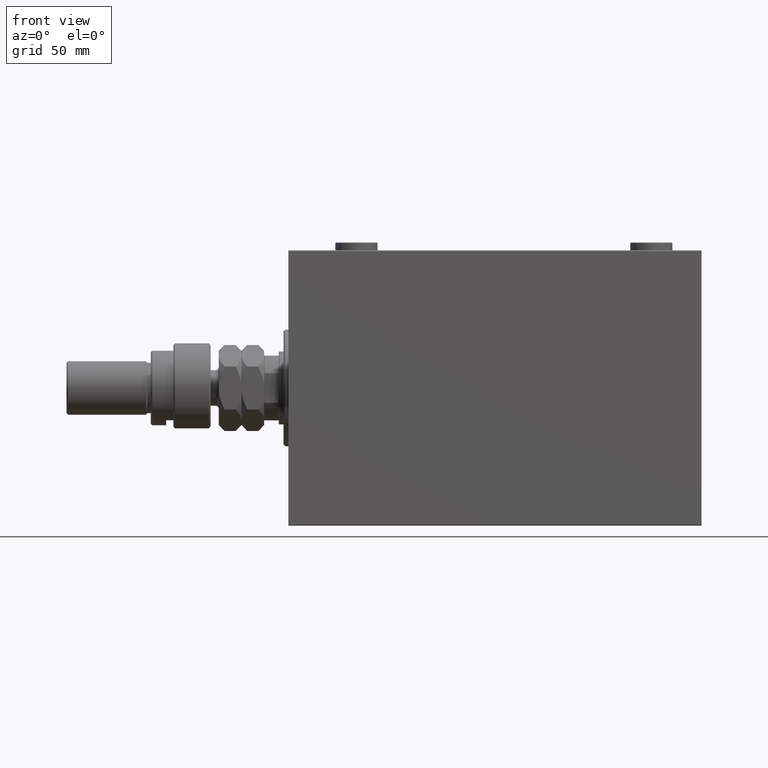
[diagram: clean part render]
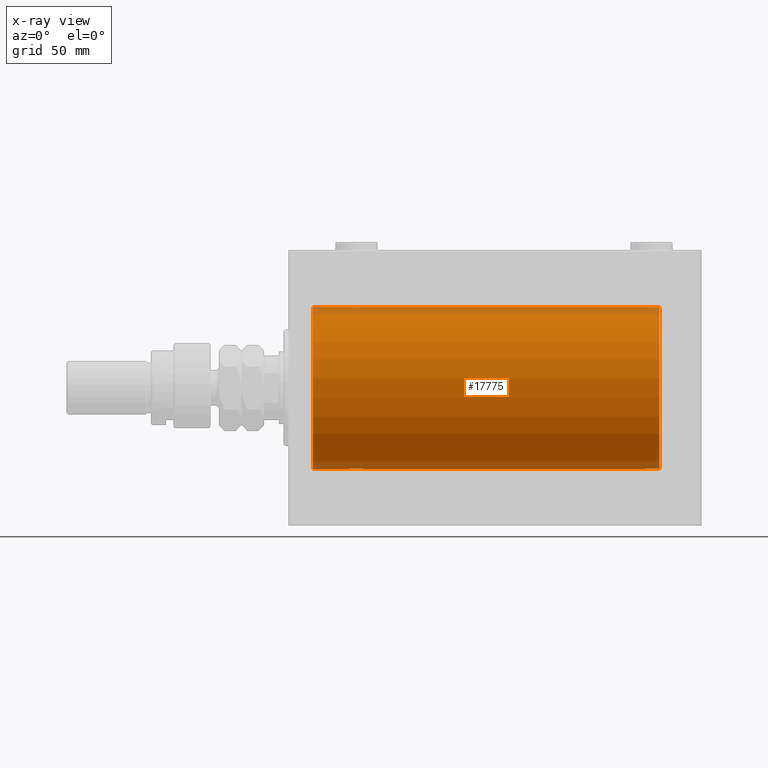
[diagram: x-ray — body ghosted, one internal face saturated and labeled with its STEP entity id]
A machine part, front view, then the same camera in x-ray: the body is ghosted and one INTERNAL B-rep face — a face not visible from any outside direction — is saturated and labeled: STEP entity #17775.
In plain terms, the highlighted cylindrical surface (partial cylindrical patch) has radius 50 mm, axis along (-1, -0, -0).
Its self-contained STEP definition (entity closure, byte-faithful):
#751 = EDGE_CURVE ( 'NONE', #17888, #2293, #23182, .T. ) ;
#1403 = ORIENTED_EDGE ( 'NONE', *, *, #14682, .T. ) ;
#1450 = CARTESIAN_POINT ( 'NONE',  ( 38.62480015918034582, -2.597781786597462617, -49.93300953359122474 ) ) ;
#1687 = CARTESIAN_POINT ( 'NONE',  ( 37.77757364479219149, -0.5587117664567089470, -49.99763378604803421 ) ) ;
#1908 = VERTEX_POINT ( 'NONE', #10780 ) ;
#1913 = CARTESIAN_POINT ( 'NONE',  ( 41.44591435119853173, -4.222816005855193566, -49.82138837911247720 ) ) ;
#2159 = CARTESIAN_POINT ( 'NONE',  ( 40.90262382120963025, -4.115209769591096745, -49.83039196709104601 ) ) ;
#2293 = VERTEX_POINT ( 'NONE', #25369 ) ;
#2536 = VECTOR ( 'NONE', #30419, 1000.000000000000000 ) ;
#2678 = LINE ( 'NONE', #47817, #18239 ) ;
#3352 = CARTESIAN_POINT ( 'NONE',  ( 228.2500000000000568, -0.2808785465865648034, 50.00000000000001421 ) ) ;
#3423 = CARTESIAN_POINT ( 'NONE',  ( 46.25000000000000000, 6.123233970928975205E-15, -50.00000000000000000 ) ) ;
#3530 = ORIENTED_EDGE ( 'NONE', *, *, #7218, .T. ) ;
#3645 = B_SPLINE_CURVE_WITH_KNOTS ( 'NONE', 3,
 ( #12414, #43136, #35810, #31901, #12880, #35321, #23635, #5336, #16081, #38771, #35097, #39002, #42662, #20214, #17023, #30958, #20449, #38533, #1913, #2159, #5095, #5804, #28241, #9692, #19986, #13362, #1450, #16785, #20682, #46079, #31663, #1687, #13123, #16322 ),
 .UNSPECIFIED., .F., .F.,
 ( 4, 2, 2, 2, 2, 2, 2, 2, 2, 2, 2, 2, 2, 2, 2, 2, 4 ),
 ( 0.01329343152928757175, 0.01412407817529635380, 0.01495472482130513585, 0.01578537146731391616, 0.01661601811332270168, 0.01744666475933148372, 0.01827731140534026577, 0.01910795805134904782, 0.01993860469735782986, 0.02076925134336661191, 0.02159989798937539396, 0.02243054463538417601, 0.02326119128139295805, 0.02409183792740174010, 0.02492248457341052215, 0.02575313121941930072, 0.02658377786542808624 ),
 .UNSPECIFIED. ) ;
#3888 = EDGE_CURVE ( 'NONE', #10483, #1908, #2678, .T. ) ;
#4326 = CARTESIAN_POINT ( 'NONE',  ( 228.1143191330600359, -1.101350136471741070, -49.98862054280448319 ) ) ;
#4520 = CARTESIAN_POINT ( 'NONE',  ( 229.0000000000000000, 0.000000000000000000, 0.000000000000000000 ) ) ;
#4567 = CARTESIAN_POINT ( 'NONE',  ( 226.5931272088596415, -3.378657745070633656, -49.88595615988430154 ) ) ;
#4689 = EDGE_CURVE ( 'NONE', #47367, #15330, #3645, .T. ) ;
#4858 = CARTESIAN_POINT ( 'NONE',  ( 43.88217049484444487, -3.820681512513376177, 49.85392475515401145 ) ) ;
#5093 = CARTESIAN_POINT ( 'NONE',  ( 39.40687279114044372, -3.378657745070624774, 49.88595615988428733 ) ) ;
#5095 = CARTESIAN_POINT ( 'NONE',  ( 40.63289352445425351, -4.033756670430834745, -49.83713703490974467 ) ) ;
#5334 = CARTESIAN_POINT ( 'NONE',  ( 43.36710647554576070, -4.033756670430846292, 49.83713703490974467 ) ) ;
#5336 = CARTESIAN_POINT ( 'NONE',  ( 45.37881717263737613, -2.593114840406121946, -49.93325460257640458 ) ) ;
#5521 = CARTESIAN_POINT ( 'NONE',  ( 222.1178295051556688, -3.820681512513397937, -49.85392475515401145 ) ) ;
#5570 = CARTESIAN_POINT ( 'NONE',  ( 46.25000000000004263, -0.2808785465865667463, 50.00000000000001421 ) ) ;
#5750 = CARTESIAN_POINT ( 'NONE',  ( 221.8736835512492576, -3.690299572754732083, -49.86386974736159061 ) ) ;
#5804 = CARTESIAN_POINT ( 'NONE',  ( 40.11782950515556934, -3.820681512513369515, -49.85392475515401145 ) ) ;
#6230 = CARTESIAN_POINT ( 'NONE',  ( 221.1930216816069219, -3.203153387937335506, -49.89767833571684008 ) ) ;
#6496 = CARTESIAN_POINT ( 'NONE',  ( 46.25000000000000000, 5.983909456282587589E-15, 50.00000000000000000 ) ) ;
#6993 = CARTESIAN_POINT ( 'NONE',  ( 228.1124970108033949, -1.108337267831492889, 49.98846998601261760 ) ) ;
#7218 = EDGE_CURVE ( 'NONE', #21202, #37047, #30811, .T. ) ;
#7227 = CARTESIAN_POINT ( 'NONE',  ( 226.8069783183931349, -3.203153387937324403, 49.89767833571684008 ) ) ;
#7473 = CARTESIAN_POINT ( 'NONE',  ( 227.8183924898787609, -1.886522330773414913, 49.96505190380066352 ) ) ;
#7510 = AXIS2_PLACEMENT_3D ( 'NONE', #30649, #11376, #42125 ) ;
#7752 = DIRECTION ( 'NONE',  ( -1.000000000000000000, 0.000000000000000000, 0.000000000000000000 ) ) ;
#7940 = B_SPLINE_CURVE_WITH_KNOTS ( 'NONE', 3,
 ( #16078, #41952, #31658, #15834, #8509, #23159, #16783, #27067, #38531, #42417, #5093, #38769, #12173, #12410, #42189, #30955, #8983, #19983, #19741, #23867, #5334, #4858, #8745, #8272, #34616, #46315, #46554, #24096, #20209, #23632, #42660, #26815, #5570, #23402 ),
 .UNSPECIFIED., .F., .F.,
 ( 4, 2, 2, 2, 2, 2, 2, 2, 2, 2, 2, 2, 2, 2, 2, 2, 4 ),
 ( 0.01329343152928760124, 0.01412407817529638850, 0.01495472482130517575, 0.01578537146731396126, 0.01661601811332274678, 0.01744666475933153577, 0.01827731140534032128, 0.01910795805134911027, 0.01993860469735789925, 0.02076925134336668477, 0.02159989798937547029, 0.02243054463538425927, 0.02326119128139304479, 0.02409183792740183377, 0.02492248457341061929, 0.02575313121941940481, 0.02658377786542819379 ),
 .UNSPECIFIED. ) ;
#7953 = CARTESIAN_POINT ( 'NONE',  ( 221.8686360055384910, -3.687400765141532144, 49.86408552998298660 ) ) ;
#8086 = B_SPLINE_CURVE_WITH_KNOTS ( 'NONE', 3,
 ( #34564, #37753, #30176, #4326, #30421, #38237, #45316, #26760, #8218, #23106, #4567, #19447, #16022, #27250, #12360, #20400, #42365, #35992, #9401, #24281, #38719, #5521, #5750, #39659, #6230, #38949, #17442, #42609, #42844, #35272, #16969, #39179, #31368, #39421 ),
 .UNSPECIFIED., .F., .F.,
 ( 4, 2, 2, 2, 2, 2, 2, 2, 2, 2, 2, 2, 2, 2, 2, 2, 4 ),
 ( 0.01329343152928758563, 0.01412407817529637115, 0.01495472482130515840, 0.01578537146731394392, 0.01661601811332272943, 0.01744666475933151495, 0.01827731140534030393, 0.01910795805134908945, 0.01993860469735787497, 0.02076925134336666395, 0.02159989798937544947, 0.02243054463538423499, 0.02326119128139302050, 0.02409183792740180602, 0.02492248457341059154, 0.02575313121941938052, 0.02658377786542816604 ),
 .UNSPECIFIED. ) ;
#8218 = CARTESIAN_POINT ( 'NONE',  ( 227.2030356195199658, -2.807099414226281286, -49.92152599098506727 ) ) ;
#8272 = CARTESIAN_POINT ( 'NONE',  ( 44.58820214676201488, -3.382416624899780011, 49.88570010427956447 ) ) ;
#8509 = CARTESIAN_POINT ( 'NONE',  ( 37.96727357902688027, -1.369753890039652644, 49.98188917176551627 ) ) ;
#8733 = EDGE_CURVE ( 'NONE', #1908, #40833, #8086, .T. ) ;
#8745 = CARTESIAN_POINT ( 'NONE',  ( 44.12631644875079928, -3.690299572754719204, 49.86386974736159772 ) ) ;
#8983 = CARTESIAN_POINT ( 'NONE',  ( 41.71604712973303464, -4.249777379711404457, 49.81906655360197078 ) ) ;
#9379 = CARTESIAN_POINT ( 'NONE',  ( 229.0000000000000000, 6.123233995736764507E-15, -50.00000000000000000 ) ) ;
#9401 = CARTESIAN_POINT ( 'NONE',  ( 223.4459143511985246, -4.222816005855223764, -49.82138837911247009 ) ) ;
#9692 = CARTESIAN_POINT ( 'NONE',  ( 39.41179785323801354, -3.382416624899770685, -49.88570010427955737 ) ) ;
#10483 = VERTEX_POINT ( 'NONE', #28712 ) ;
#10649 = CARTESIAN_POINT ( 'NONE',  ( 223.4400213230435668, -4.222042462213131842, 49.82145436824653473 ) ) ;
#10682 = CARTESIAN_POINT ( 'NONE',  ( 14.99999999999998579, 0.000000000000000000, 0.000000000000000000 ) ) ;
#10780 = CARTESIAN_POINT ( 'NONE',  ( 228.2500000000000284, 6.123233970934497231E-15, -50.00000000000000000 ) ) ;
#10891 = CARTESIAN_POINT ( 'NONE',  ( 226.5882021467620291, -3.382416624899780899, 49.88570010427955737 ) ) ;
#10955 = DIRECTION ( 'NONE',  ( -1.000000000000000000, -0.000000000000000000, -0.000000000000000000 ) ) ;
#11373 = CARTESIAN_POINT ( 'NONE',  ( 226.1263164487508277, -3.690299572754722313, 49.86386974736159061 ) ) ;
#11376 = DIRECTION ( 'NONE',  ( -1.000000000000000000, 0.000000000000000000, 0.000000000000000000 ) ) ;
#12173 = CARTESIAN_POINT ( 'NONE',  ( 40.11255260607201478, -3.818052230167719330, 49.85412671291930309 ) ) ;
#12360 = CARTESIAN_POINT ( 'NONE',  ( 225.1032329603422397, -4.113647494206493782, -49.83052139214891696 ) ) ;
#12410 = CARTESIAN_POINT ( 'NONE',  ( 40.62666563420964394, -4.031616700143186627, 49.83731072121798888 ) ) ;
#12414 = CARTESIAN_POINT ( 'NONE',  ( 46.25000000000000000, 6.123233970928975205E-15, -50.00000000000000000 ) ) ;
#12692 = CARTESIAN_POINT ( 'NONE',  ( 219.7500000000000284, -1.485882679034568268E-14, -50.00000000000000000 ) ) ;
#12880 = CARTESIAN_POINT ( 'NONE',  ( 46.03272642097311973, -1.369753890039645539, -49.98188917176553048 ) ) ;
#13044 = DIRECTION ( 'NONE',  ( -1.000000000000000000, -0.000000000000000000, -0.000000000000000000 ) ) ;
#13123 = CARTESIAN_POINT ( 'NONE',  ( 37.75000000000002132, -0.2808785465865586417, -50.00000000000002842 ) ) ;
#13362 = CARTESIAN_POINT ( 'NONE',  ( 38.80078072038718062, -2.811461347331096317, -49.92127983148851911 ) ) ;
#14007 = ORIENTED_EDGE ( 'NONE', *, *, #29824, .F. ) ;
#14127 = CARTESIAN_POINT ( 'NONE',  ( 14.99999999999998579, 6.123233995736764507E-15, -50.00000000000000000 ) ) ;
#14306 = CARTESIAN_POINT ( 'NONE',  ( 219.7768924720100472, -0.5531336717329072838, 49.99769193709643389 ) ) ;
#14559 = CARTESIAN_POINT ( 'NONE',  ( 225.0973761787904550, -4.115209769591112732, 49.83039196709102470 ) ) ;
#14682 = EDGE_CURVE ( 'NONE', #15330, #21202, #21240, .T. ) ;
#14803 = CARTESIAN_POINT ( 'NONE',  ( 220.6211828273627304, -2.593114840406140598, 49.93325460257641879 ) ) ;
#14940 = ORIENTED_EDGE ( 'NONE', *, *, #34046, .F. ) ;
#15001 = CARTESIAN_POINT ( 'NONE',  ( 229.0000000000000000, 0.000000000000000000, 50.00000000000000000 ) ) ;
#15045 = CARTESIAN_POINT ( 'NONE',  ( 220.3106284432061841, -2.128188802142376268, 49.95522967821975158 ) ) ;
#15292 = CARTESIAN_POINT ( 'NONE',  ( 219.9672735790269087, -1.369753890039667299, 49.98188917176553048 ) ) ;
#15330 = VERTEX_POINT ( 'NONE', #36989 ) ;
#15539 = CARTESIAN_POINT ( 'NONE',  ( 229.0000000000000000, 0.000000000000000000, 50.00000000000000000 ) ) ;
#15557 = ORIENTED_EDGE ( 'NONE', *, *, #29178, .T. ) ;
#15834 = CARTESIAN_POINT ( 'NONE',  ( 37.88568086693991432, -1.101350136471744623, 49.98862054280447609 ) ) ;
#16022 = CARTESIAN_POINT ( 'NONE',  ( 225.8874473939280279, -3.818052230167738870, -49.85412671291929598 ) ) ;
#16078 = CARTESIAN_POINT ( 'NONE',  ( 37.75000000000000711, -2.480809774739037926E-23, 50.00000000000000000 ) ) ;
#16081 = CARTESIAN_POINT ( 'NONE',  ( 45.20303561951989479, -2.807099414226267076, -49.92152599098507437 ) ) ;
#16322 = CARTESIAN_POINT ( 'NONE',  ( 37.75000000000000711, 4.113764933535406279E-15, -50.00000000000000000 ) ) ;
#16766 = AXIS2_PLACEMENT_3D ( 'NONE', #10682, #7752, #18254 ) ;
#16783 = CARTESIAN_POINT ( 'NONE',  ( 38.31062844320613436, -2.128188802142365166, 49.95522967821974447 ) ) ;
#16785 = CARTESIAN_POINT ( 'NONE',  ( 38.31397167878050425, -2.133925816755180449, -49.95498245321556396 ) ) ;
#16969 = CARTESIAN_POINT ( 'NONE',  ( 219.8875029891967188, -1.108337267831510209, -49.98846998601261760 ) ) ;
#17023 = CARTESIAN_POINT ( 'NONE',  ( 43.10323296034216156, -4.113647494206467137, -49.83052139214892406 ) ) ;
#17442 = CARTESIAN_POINT ( 'NONE',  ( 220.6248001591803813, -2.597781786597481712, -49.93300953359122474 ) ) ;
#17775 = ADVANCED_FACE ( 'NONE', ( #26969 ), #37952, .F. ) ;
#17888 = VERTEX_POINT ( 'NONE', #39131 ) ;
#18239 = VECTOR ( 'NONE', #10955, 1000.000000000000000 ) ;
#18254 = DIRECTION ( 'NONE',  ( 0.000000000000000000, 0.000000000000000000, 1.000000000000000000 ) ) ;
#18516 = CARTESIAN_POINT ( 'NONE',  ( 14.99999999999998579, 0.000000000000000000, 50.00000000000000000 ) ) ;
#18708 = CARTESIAN_POINT ( 'NONE',  ( 222.1125526060720290, -3.818052230167728656, 49.85412671291929598 ) ) ;
#19447 = CARTESIAN_POINT ( 'NONE',  ( 226.1313639944616227, -3.687400765141540582, -49.86408552998298660 ) ) ;
#19741 = CARTESIAN_POINT ( 'NONE',  ( 42.55408564880149669, -4.222816005855208665, 49.82138837911247009 ) ) ;
#19983 = CARTESIAN_POINT ( 'NONE',  ( 42.27724927037917979, -4.250219976861642657, 49.81902879621012659 ) ) ;
#19986 = CARTESIAN_POINT ( 'NONE',  ( 39.19302168160691480, -3.203153387937309748, -49.89767833571684008 ) ) ;
#20209 = CARTESIAN_POINT ( 'NONE',  ( 45.81839248987871827, -1.886522330773408029, 49.96505190380065642 ) ) ;
#20214 = CARTESIAN_POINT ( 'NONE',  ( 43.37333436579038448, -4.031616700143170640, -49.83731072121799599 ) ) ;
#20400 = CARTESIAN_POINT ( 'NONE',  ( 224.5599786769565469, -4.222042462213138947, -49.82145436824653473 ) ) ;
#20449 = CARTESIAN_POINT ( 'NONE',  ( 42.28395287026697957, -4.249777379711388470, -49.81906655360197789 ) ) ;
#20646 = VERTEX_POINT ( 'NONE', #6496 ) ;
#20682 = CARTESIAN_POINT ( 'NONE',  ( 38.18160751012128173, -1.886522330773408251, -49.96505190380065642 ) ) ;
#21202 = VERTEX_POINT ( 'NONE', #14127 ) ;
#21240 = LINE ( 'NONE', #36118, #37193 ) ;
#21892 = CARTESIAN_POINT ( 'NONE',  ( 222.8967670396579024, -4.113647494206492006, 49.83052139214891696 ) ) ;
#22139 = LINE ( 'NONE', #15539, #2536 ) ;
#22844 = CARTESIAN_POINT ( 'NONE',  ( 220.1789941801477539, -1.881229021238139731, 49.96525240872482954 ) ) ;
#23106 = CARTESIAN_POINT ( 'NONE',  ( 226.8115306651542085, -3.199146701881677490, -49.89793607725460589 ) ) ;
#23159 = CARTESIAN_POINT ( 'NONE',  ( 38.17899418014773261, -1.881229021238125521, 49.96525240872481533 ) ) ;
#23182 = B_SPLINE_CURVE_WITH_KNOTS ( 'NONE', 3,
 ( #47998, #44092, #14306, #40431, #15292, #22844, #15045, #14803, #40916, #47752, #29683, #7953, #18708, #37501, #21892, #10649, #33824, #29441, #29919, #14559, #44817, #44336, #11373, #10891, #7227, #37261, #37737, #26263, #7473, #44576, #6993, #36770, #3352, #25782 ),
 .UNSPECIFIED., .F., .F.,
 ( 4, 2, 2, 2, 2, 2, 2, 2, 2, 2, 2, 2, 2, 2, 2, 2, 4 ),
 ( 0.01329343152928759257, 0.01412407817529637809, 0.01495472482130516534, 0.01578537146731395086, 0.01661601811332273637, 0.01744666475933152189, 0.01827731140534030740, 0.01910795805134909292, 0.01993860469735788191, 0.02076925134336666742, 0.02159989798937545294, 0.02243054463538423846, 0.02326119128139302744, 0.02409183792740181296, 0.02492248457341059847, 0.02575313121941938399, 0.02658377786542816951 ),
 .UNSPECIFIED. ) ;
#23402 = CARTESIAN_POINT ( 'NONE',  ( 46.25000000000000000, 5.983909456282587589E-15, 50.00000000000000000 ) ) ;
#23632 = CARTESIAN_POINT ( 'NONE',  ( 46.03079796155342507, -1.375411031076031687, 49.98173289062309976 ) ) ;
#23635 = CARTESIAN_POINT ( 'NONE',  ( 45.68937155679385853, -2.128188802142360281, -49.95522967821975868 ) ) ;
#23867 = CARTESIAN_POINT ( 'NONE',  ( 43.09737617879036975, -4.115209769591108291, 49.83039196709102470 ) ) ;
#24096 = CARTESIAN_POINT ( 'NONE',  ( 45.68602832121950286, -2.133925816755175564, 49.95498245321557818 ) ) ;
#24281 = CARTESIAN_POINT ( 'NONE',  ( 222.9026238212096587, -4.115209769591121614, -49.83039196709102470 ) ) ;
#24663 = EDGE_CURVE ( 'NONE', #39147, #2293, #22139, .T. ) ;
#25369 = CARTESIAN_POINT ( 'NONE',  ( 228.2500000000000284, 3.264240518254796977E-15, 50.00000000000000000 ) ) ;
#25782 = CARTESIAN_POINT ( 'NONE',  ( 228.2500000000000284, 3.264240518254796977E-15, 50.00000000000000000 ) ) ;
#26263 = CARTESIAN_POINT ( 'NONE',  ( 227.6860283212195668, -2.133925816755183558, 49.95498245321557818 ) ) ;
#26760 = CARTESIAN_POINT ( 'NONE',  ( 227.3788171726373264, -2.593114840406127719, -49.93325460257641879 ) ) ;
#26815 = CARTESIAN_POINT ( 'NONE',  ( 46.22242635520780851, -0.5587117664567096131, 49.99763378604802000 ) ) ;
#26922 = ORIENTED_EDGE ( 'NONE', *, *, #3888, .T. ) ;
#26969 = FACE_OUTER_BOUND ( 'NONE', #34584, .T. ) ;
#27067 = CARTESIAN_POINT ( 'NONE',  ( 38.62118282736263097, -2.593114840406128163, 49.93325460257639747 ) ) ;
#27250 = CARTESIAN_POINT ( 'NONE',  ( 225.3733343657904129, -4.031616700143205279, -49.83731072121799599 ) ) ;
#28241 = CARTESIAN_POINT ( 'NONE',  ( 39.87368355124922203, -3.690299572754709878, -49.86386974736159772 ) ) ;
#28712 = CARTESIAN_POINT ( 'NONE',  ( 229.0000000000000000, 6.123233995736764507E-15, -50.00000000000000000 ) ) ;
#29178 = EDGE_CURVE ( 'NONE', #40204, #20646, #7940, .T. ) ;
#29441 = CARTESIAN_POINT ( 'NONE',  ( 224.2772492703792011, -4.250219976861650650, 49.81902879621013369 ) ) ;
#29683 = CARTESIAN_POINT ( 'NONE',  ( 221.4068727911404721, -3.378657745070624774, 49.88595615988430154 ) ) ;
#29824 = EDGE_CURVE ( 'NONE', #17888, #20646, #48194, .T. ) ;
#29919 = CARTESIAN_POINT ( 'NONE',  ( 224.5540856488015322, -4.222816005855213106, 49.82138837911247009 ) ) ;
#30176 = CARTESIAN_POINT ( 'NONE',  ( 228.2231075279900381, -0.5531336717329015107, -49.99769193709643389 ) ) ;
#30419 = DIRECTION ( 'NONE',  ( -1.000000000000000000, -0.000000000000000000, -0.000000000000000000 ) ) ;
#30421 = CARTESIAN_POINT ( 'NONE',  ( 228.0327264209731766, -1.369753890039647093, -49.98188917176553048 ) ) ;
#30649 = CARTESIAN_POINT ( 'NONE',  ( 229.0000000000000000, 0.000000000000000000, 0.000000000000000000 ) ) ;
#30811 = CIRCLE ( 'NONE', #16766, 50.00000000000000000 ) ;
#30886 = CIRCLE ( 'NONE', #7510, 50.00000000000000000 ) ;
#30955 = CARTESIAN_POINT ( 'NONE',  ( 41.44002132304353125, -4.222042462213122960, 49.82145436824652762 ) ) ;
#30958 = CARTESIAN_POINT ( 'NONE',  ( 42.55997867695646875, -4.222042462213109637, -49.82145436824654183 ) ) ;
#31368 = CARTESIAN_POINT ( 'NONE',  ( 219.7500000000000853, -0.2808785465865831776, -50.00000000000001421 ) ) ;
#31658 = CARTESIAN_POINT ( 'NONE',  ( 37.77689247200999034, -0.5531336717329059516, 49.99769193709643389 ) ) ;
#31663 = CARTESIAN_POINT ( 'NONE',  ( 37.88750298919665482, -1.108337267831484008, -49.98846998601261760 ) ) ;
#31901 = CARTESIAN_POINT ( 'NONE',  ( 46.11431913306007857, -1.101350136471737073, -49.98862054280448319 ) ) ;
#32695 = LINE ( 'NONE', #40013, #35020 ) ;
#32870 = ORIENTED_EDGE ( 'NONE', *, *, #8733, .T. ) ;
#33824 = CARTESIAN_POINT ( 'NONE',  ( 223.7160471297330560, -4.249777379711409786, 49.81906655360197789 ) ) ;
#34046 = EDGE_CURVE ( 'NONE', #10483, #39147, #30886, .T. ) ;
#34289 = DIRECTION ( 'NONE',  ( -1.000000000000000000, -0.000000000000000000, -0.000000000000000000 ) ) ;
#34564 = CARTESIAN_POINT ( 'NONE',  ( 228.2500000000000284, 6.123233970934497231E-15, -50.00000000000000000 ) ) ;
#34584 = EDGE_LOOP ( 'NONE', ( #14940, #26922, #32870, #45337, #40552, #1403, #3530, #45321, #15557, #14007, #45636, #40592 ) ) ;
#34616 = CARTESIAN_POINT ( 'NONE',  ( 44.80697831839309941, -3.203153387937316854, 49.89767833571684719 ) ) ;
#35020 = VECTOR ( 'NONE', #36104, 1000.000000000000000 ) ;
#35097 = CARTESIAN_POINT ( 'NONE',  ( 44.59312720885954917, -3.378657745070612339, -49.88595615988430154 ) ) ;
#35272 = CARTESIAN_POINT ( 'NONE',  ( 219.9692020384465820, -1.375411031076054336, -49.98173289062309976 ) ) ;
#35321 = CARTESIAN_POINT ( 'NONE',  ( 45.82100581985226029, -1.881229021238117305, -49.96525240872482954 ) ) ;
#35810 = CARTESIAN_POINT ( 'NONE',  ( 46.22310752799000255, -0.5531336717328990682, -49.99769193709643389 ) ) ;
#35992 = CARTESIAN_POINT ( 'NONE',  ( 223.7227507296208842, -4.250219976861660420, -49.81902879621013369 ) ) ;
#36104 = DIRECTION ( 'NONE',  ( -1.000000000000000000, -0.000000000000000000, -0.000000000000000000 ) ) ;
#36118 = CARTESIAN_POINT ( 'NONE',  ( 229.0000000000000000, 6.123233995736764507E-15, -50.00000000000000000 ) ) ;
#36166 = VECTOR ( 'NONE', #41117, 1000.000000000000000 ) ;
#36369 = DIRECTION ( 'NONE',  ( -1.000000000000000000, -0.000000000000000000, -0.000000000000000000 ) ) ;
#36770 = CARTESIAN_POINT ( 'NONE',  ( 228.2224263552078014, -0.5587117664567154973, 49.99763378604802000 ) ) ;
#36989 = CARTESIAN_POINT ( 'NONE',  ( 37.75000000000000711, 4.113764933535406279E-15, -50.00000000000000000 ) ) ;
#37047 = VERTEX_POINT ( 'NONE', #18516 ) ;
#37193 = VECTOR ( 'NONE', #36369, 1000.000000000000000 ) ;
#37261 = CARTESIAN_POINT ( 'NONE',  ( 227.1992192796128336, -2.811461347331109639, 49.92127983148852621 ) ) ;
#37495 = CARTESIAN_POINT ( 'NONE',  ( 229.0000000000000000, 0.000000000000000000, 50.00000000000000000 ) ) ;
#37501 = CARTESIAN_POINT ( 'NONE',  ( 222.6266656342096724, -4.031616700143195509, 49.83731072121799599 ) ) ;
#37737 = CARTESIAN_POINT ( 'NONE',  ( 227.3751998408197039, -2.597781786597468390, 49.93300953359122474 ) ) ;
#37753 = CARTESIAN_POINT ( 'NONE',  ( 228.2500000000000568, -0.2773743941468490570, -50.00000000000000711 ) ) ;
#37952 = CYLINDRICAL_SURFACE ( 'NONE', #41930, 50.00000000000000000 ) ;
#38237 = CARTESIAN_POINT ( 'NONE',  ( 227.8210058198523598, -1.881229021238121524, -49.96525240872482954 ) ) ;
#38531 = CARTESIAN_POINT ( 'NONE',  ( 38.79696438048010521, -2.807099414226279066, 49.92152599098506016 ) ) ;
#38533 = CARTESIAN_POINT ( 'NONE',  ( 41.72275072962083442, -4.250219976861629334, -49.81902879621016211 ) ) ;
#38719 = CARTESIAN_POINT ( 'NONE',  ( 222.6328935244542890, -4.033756670430864943, -49.83713703490974467 ) ) ;
#38769 = CARTESIAN_POINT ( 'NONE',  ( 39.86863600553846254, -3.687400765141531700, 49.86408552998297949 ) ) ;
#38771 = CARTESIAN_POINT ( 'NONE',  ( 44.81153066515420136, -3.199146701881660171, -49.89793607725461300 ) ) ;
#38949 = CARTESIAN_POINT ( 'NONE',  ( 220.8007807203871948, -2.811461347331121186, -49.92127983148852621 ) ) ;
#39002 = CARTESIAN_POINT ( 'NONE',  ( 44.13136399446155878, -3.687400765141517045, -49.86408552998298660 ) ) ;
#39131 = CARTESIAN_POINT ( 'NONE',  ( 219.7500000000000284, -2.480257572105383217E-23, 50.00000000000000000 ) ) ;
#39147 = VERTEX_POINT ( 'NONE', #37495 ) ;
#39179 = CARTESIAN_POINT ( 'NONE',  ( 219.7775736447922270, -0.5587117664567331499, -49.99763378604802000 ) ) ;
#39335 = EDGE_CURVE ( 'NONE', #40833, #47367, #46236, .T. ) ;
#39421 = CARTESIAN_POINT ( 'NONE',  ( 219.7500000000000284, -1.485882679034568268E-14, -50.00000000000000000 ) ) ;
#39659 = CARTESIAN_POINT ( 'NONE',  ( 221.4117978532380278, -3.382416624899790669, -49.88570010427955737 ) ) ;
#40013 = CARTESIAN_POINT ( 'NONE',  ( 229.0000000000000000, 0.000000000000000000, 50.00000000000000000 ) ) ;
#40204 = VERTEX_POINT ( 'NONE', #46957 ) ;
#40431 = CARTESIAN_POINT ( 'NONE',  ( 219.8856808669399356, -1.101350136471746399, 49.98862054280448319 ) ) ;
#40552 = ORIENTED_EDGE ( 'NONE', *, *, #4689, .T. ) ;
#40592 = ORIENTED_EDGE ( 'NONE', *, *, #24663, .F. ) ;
#40833 = VERTEX_POINT ( 'NONE', #12692 ) ;
#40916 = CARTESIAN_POINT ( 'NONE',  ( 220.7969643804801194, -2.807099414226295941, 49.92152599098506727 ) ) ;
#41117 = DIRECTION ( 'NONE',  ( -1.000000000000000000, -0.000000000000000000, -0.000000000000000000 ) ) ;
#41930 = AXIS2_PLACEMENT_3D ( 'NONE', #4520, #34289, #45511 ) ;
#41952 = CARTESIAN_POINT ( 'NONE',  ( 37.75000000000001421, -0.2773743941468539420, 50.00000000000000711 ) ) ;
#42125 = DIRECTION ( 'NONE',  ( 0.000000000000000000, 0.000000000000000000, 1.000000000000000000 ) ) ;
#42189 = CARTESIAN_POINT ( 'NONE',  ( 40.89676703965783844, -4.113647494206482236, 49.83052139214890985 ) ) ;
#42365 = CARTESIAN_POINT ( 'NONE',  ( 224.2839528702670293, -4.249777379711420444, -49.81906655360197789 ) ) ;
#42417 = CARTESIAN_POINT ( 'NONE',  ( 39.18846933484580575, -3.199146701881673938, 49.89793607725460589 ) ) ;
#42609 = CARTESIAN_POINT ( 'NONE',  ( 220.3139716787804332, -2.133925816755195992, -49.95498245321557818 ) ) ;
#42660 = CARTESIAN_POINT ( 'NONE',  ( 46.11249701080335228, -1.108337267831485340, 49.98846998601261760 ) ) ;
#42662 = CARTESIAN_POINT ( 'NONE',  ( 43.88744739392799232, -3.818052230167705119, -49.85412671291930309 ) ) ;
#42844 = CARTESIAN_POINT ( 'NONE',  ( 220.1816075101212959, -1.886522330773430900, -49.96505190380066352 ) ) ;
#43136 = CARTESIAN_POINT ( 'NONE',  ( 46.25000000000000000, -0.2773743941468470031, -50.00000000000000000 ) ) ;
#44092 = CARTESIAN_POINT ( 'NONE',  ( 219.7500000000000284, -0.2773743941468554408, 50.00000000000000711 ) ) ;
#44336 = CARTESIAN_POINT ( 'NONE',  ( 225.8821704948444733, -3.820681512513388167, 49.85392475515401145 ) ) ;
#44576 = CARTESIAN_POINT ( 'NONE',  ( 228.0307979615534748, -1.375411031076039237, 49.98173289062309976 ) ) ;
#44817 = CARTESIAN_POINT ( 'NONE',  ( 225.3671064755457678, -4.033756670430855173, 49.83713703490974467 ) ) ;
#45316 = CARTESIAN_POINT ( 'NONE',  ( 227.6893715567939580, -2.128188802142363389, -49.95522967821975158 ) ) ;
#45321 = ORIENTED_EDGE ( 'NONE', *, *, #47378, .F. ) ;
#45337 = ORIENTED_EDGE ( 'NONE', *, *, #39335, .T. ) ;
#45511 = DIRECTION ( 'NONE',  ( 0.000000000000000000, 0.000000000000000000, 1.000000000000000000 ) ) ;
#45636 = ORIENTED_EDGE ( 'NONE', *, *, #751, .T. ) ;
#46079 = CARTESIAN_POINT ( 'NONE',  ( 37.96920203844657493, -1.375411031076035240, -49.98173289062309976 ) ) ;
#46236 = LINE ( 'NONE', #9379, #47287 ) ;
#46315 = CARTESIAN_POINT ( 'NONE',  ( 45.19921927961282648, -2.811461347331102534, 49.92127983148852621 ) ) ;
#46554 = CARTESIAN_POINT ( 'NONE',  ( 45.37519984081967550, -2.597781786597460840, 49.93300953359122474 ) ) ;
#46957 = CARTESIAN_POINT ( 'NONE',  ( 37.75000000000000711, -2.480809774739037926E-23, 50.00000000000000000 ) ) ;
#47287 = VECTOR ( 'NONE', #13044, 1000.000000000000000 ) ;
#47367 = VERTEX_POINT ( 'NONE', #3423 ) ;
#47378 = EDGE_CURVE ( 'NONE', #40204, #37047, #32695, .T. ) ;
#47752 = CARTESIAN_POINT ( 'NONE',  ( 221.1884693348459052, -3.199146701881689481, 49.89793607725460589 ) ) ;
#47817 = CARTESIAN_POINT ( 'NONE',  ( 229.0000000000000000, 6.123233995736764507E-15, -50.00000000000000000 ) ) ;
#47998 = CARTESIAN_POINT ( 'NONE',  ( 219.7500000000000284, -2.480257572105383217E-23, 50.00000000000000000 ) ) ;
#48194 = LINE ( 'NONE', #15001, #36166 ) ;